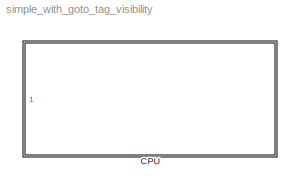
MODEL simple_with_goto_tag_visibility
KIND model
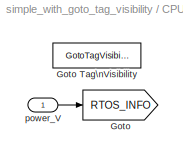
BLOCK [SubSystem] CPU
  FunctionWithSeparateData = off
  InitFcn = % Get Ts parameter                      \nTs =compSys.util.getSimulationStepTime(bdroot(gcbh));\n                                        \nupdateRtosBlk(gcbh);
  MaskHideContents = off
  MinAlgLoopOccurrences = off
  Opaque = off
  Ports = [1]
  PropExecContextOutsideSubsystem = off
  RTWSystemCode = Auto
  RequestExecContextInheritance = off
  SID = 1
BLOCK [Goto] CPU/Goto
  GotoTag = RTOS_INFO
  SID = 5
  TagVisibility = scoped
BLOCK [GotoTagVisibility] CPU/Goto Tag\nVisibility
  GotoTag = RTOS_INFO
  SID = 6
BLOCK [Inport] CPU/power_V
  IconDisplay = Port number
  SID = 2
LINE CPU/power_V:1 -> CPU/Goto:1
